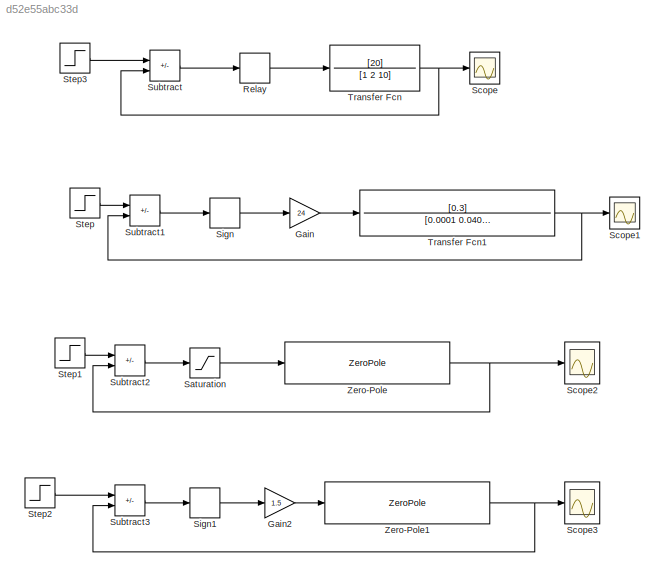
MODEL slx_d52e55abc33d
KIND model
CONFIG AbsTol = auto
CONFIG EnableMultiTasking = off
CONFIG FixedStep = 0.000001
CONFIG MaxStep = auto
CONFIG MinStep = auto
CONFIG RelTol = 1e-3
CONFIG SampleTimeConstraint = Unconstrained
CONFIG SolverName = VariableStepAuto
CONFIG StartTime = 0.0
CONFIG StopTime = 0.5
BLOCK [Gain] Gain
  Commented = on
  Gain = 24
BLOCK [Gain] Gain2
  Gain = 1.5
BLOCK [Relay] Relay
  Commented = on
  OffOutputValue = -0.5
  OffSwitchValue = -0.5
  OnOutputValue = 0.5
  OnSwitchValue = 0.5
BLOCK [Saturate] Saturation
BLOCK [Scope] Scope
  Commented = on
  Floating = off
  NumInputPorts = 1
  Ports = [1]
  ScopeSpecificationString = Simulink.scopes.TimeScopeBlockCfg('CurrentConfiguration', extmgr.ConfigurationSet(extmgr.Configuration('Core','General UI',true,'FigureColor',[1 1 1]),extmgr.Configuration('Core','Source UI',true),extmgr.Configuration('Sources','WiredSimulink',true,'DataLoggingVariableName','ScopeData1'),extmgr.Configuration('Visuals','Time Domain',true,'SerializedDisplays',{struct('MinYLimReal','-1.03193','MaxYLi...<+1534ch>
BLOCK [Scope] Scope1
  Commented = on
  Floating = off
  NumInputPorts = 1
  Ports = [1]
  ScopeSpecificationString = Simulink.scopes.TimeScopeBlockCfg('CurrentConfiguration', extmgr.ConfigurationSet(extmgr.Configuration('Core','General UI',true,'FigureColor',[1 1 1]),extmgr.Configuration('Core','Source UI',true),extmgr.Configuration('Sources','WiredSimulink',true,'DataLoggingVariableName','ScopeData1'),extmgr.Configuration('Visuals','Time Domain',true,'SerializedDisplays',{struct('MinYLimReal','-0.24778','MaxYLi...<+1538ch>
BLOCK [Scope] Scope2
  Floating = off
  NumInputPorts = 1
  Ports = [1]
  ScopeSpecificationString = Simulink.scopes.TimeScopeBlockCfg('CurrentConfiguration', extmgr.ConfigurationSet(extmgr.Configuration('Core','General UI',true,'FigureColor',[1 1 1]),extmgr.Configuration('Core','Source UI',true),extmgr.Configuration('Sources','WiredSimulink',true,'DataLoggingVariableName','ScopeData2'),extmgr.Configuration('Visuals','Time Domain',true,'SerializedDisplays',{struct('MinYLimReal','-0.0027','MaxYLim...<+1528ch>
BLOCK [Scope] Scope3
  Floating = off
  NumInputPorts = 1
  Ports = [1]
  ScopeSpecificationString = Simulink.scopes.TimeScopeBlockCfg('CurrentConfiguration', extmgr.ConfigurationSet(extmgr.Configuration('Core','General UI',true,'FigureColor',[1 1 1]),extmgr.Configuration('Core','Source UI',true),extmgr.Configuration('Sources','WiredSimulink',true,'DataLoggingVariableName','ScopeData3'),extmgr.Configuration('Visuals','Time Domain',true,'SerializedDisplays',{struct('MinYLimReal','-0.00342','MaxYLi...<+1626ch>
BLOCK [Signum] Sign
  Commented = on
BLOCK [Signum] Sign1
BLOCK [Step] Step
  After = 0
  Before = 1
  Commented = on
  SampleTime = 0
  Time = 0.01
BLOCK [Step] Step1
  After = 0
  Before = 1
  SampleTime = 0
  Time = 0.01
BLOCK [Step] Step2
  After = 0
  Before = 1
  SampleTime = 0
  Time = 0.01
BLOCK [Step] Step3
  After = 0
  Before = 1
  Commented = on
  SampleTime = 0
  Time = 0.01
BLOCK [Sum] Subtract
  Commented = on
  IconShape = rectangular
  Inputs = +-
  Ports = [2, 1]
BLOCK [Sum] Subtract1
  Commented = on
  IconShape = rectangular
  Inputs = +-
  Ports = [2, 1]
BLOCK [Sum] Subtract2
  IconShape = rectangular
  Inputs = +-
  Ports = [2, 1]
BLOCK [Sum] Subtract3
  IconShape = rectangular
  Inputs = +-
  Ports = [2, 1]
BLOCK [TransferFcn] Transfer Fcn
  Commented = on
  Denominator = [1 2 10]
  Numerator = [20]
BLOCK [TransferFcn] Transfer Fcn1
  Commented = on
  Denominator = [0.0001 0.0401 0.13 0]
  Numerator = [0.3]
BLOCK [ZeroPole] Zero-Pole
  Poles = [-1 -1 -1]
  Zeros = [-10 -10]
BLOCK [ZeroPole] Zero-Pole1
  Poles = [-1 -1 -1]
  Zeros = [-10 -10]
LINE Gain2:1 -> Zero-Pole1:1
LINE Gain:1 -> Transfer Fcn1:1
LINE Relay:1 -> Transfer Fcn:1
LINE Saturation:1 -> Zero-Pole:1
LINE Sign1:1 -> Gain2:1
LINE Sign:1 -> Gain:1
LINE Step1:1 -> Subtract2:1
LINE Step2:1 -> Subtract3:1
LINE Step3:1 -> Subtract:1
LINE Step:1 -> Subtract1:1
LINE Subtract1:1 -> Sign:1
LINE Subtract2:1 -> Saturation:1
LINE Subtract3:1 -> Sign1:1
LINE Subtract:1 -> Relay:1
NET Transfer Fcn1:1 -> Scope1:1, Subtract1:2
NET Transfer Fcn:1 -> Scope:1, Subtract:2
NET Zero-Pole1:1 -> Scope3:1, Subtract3:2
NET Zero-Pole:1 -> Scope2:1, Subtract2:2
note: NET lines group one-source signal fan-out (src -> all destinations, sorted); 1:1 wires keep LINE
